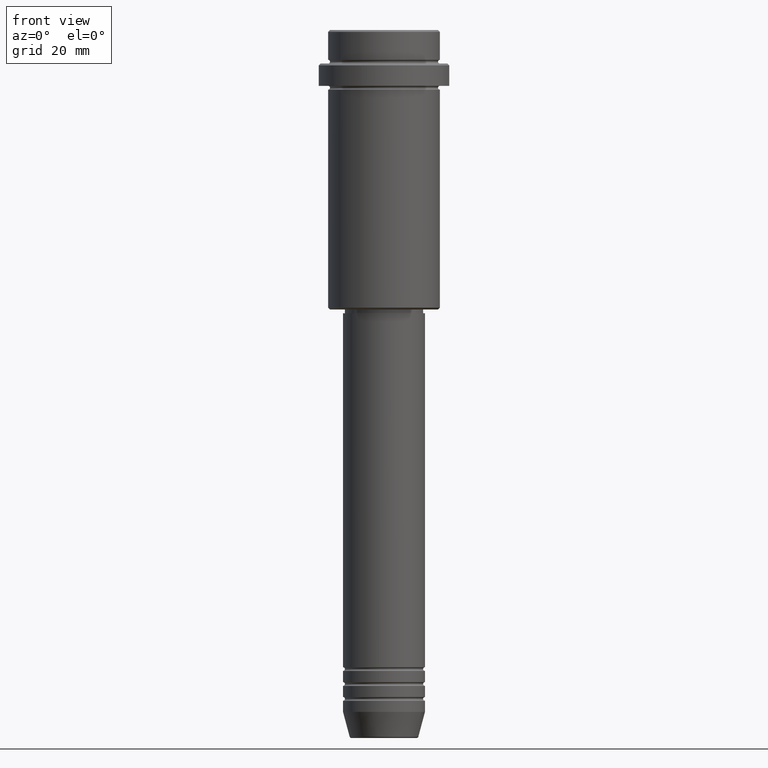
[diagram: clean part render]
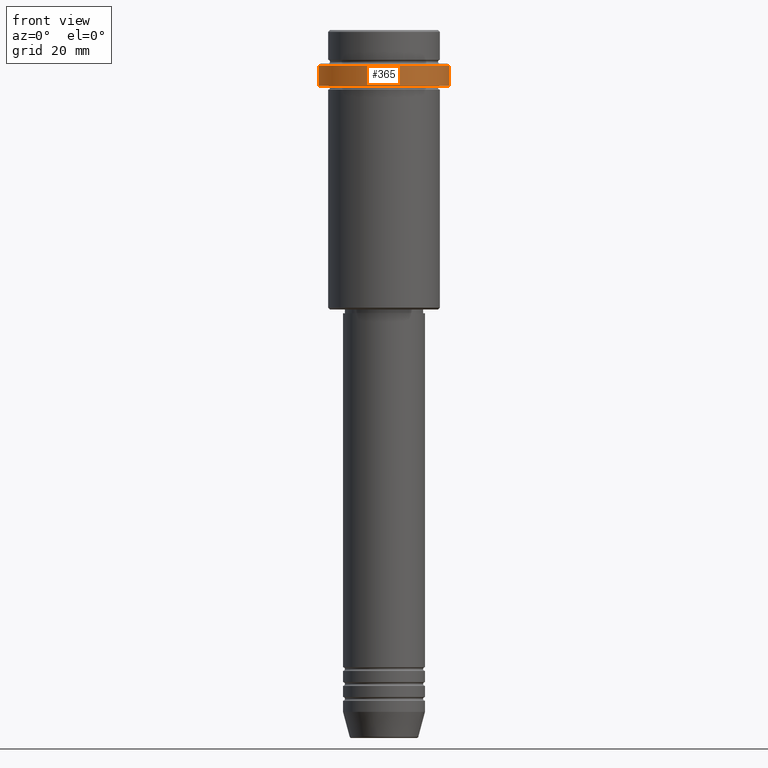
[diagram: same view with one face highlighted and labeled with its STEP entity id]
A machine part, front view. The second image highlights one B-rep face of the part: STEP entity #365.
In plain terms, the highlighted cylindrical surface (partial cylindrical patch) has radius 17.5 mm, axis along (-0, -0, 1).
Its self-contained STEP definition (entity closure, byte-faithful):
#9 = VERTEX_POINT ( 'NONE', #802 ) ;
#16 = FACE_OUTER_BOUND ( 'NONE', #464, .T. ) ;
#57 = VERTEX_POINT ( 'NONE', #792 ) ;
#143 = LINE ( 'NONE', #171, #449 ) ;
#166 = CARTESIAN_POINT ( 'NONE',  ( 0.000000000000000000, 0.000000000000000000, 0.000000000000000000 ) ) ;
#171 = CARTESIAN_POINT ( 'NONE',  ( 17.50000000000000000, 0.000000000000000000, 0.000000000000000000 ) ) ;
#184 = AXIS2_PLACEMENT_3D ( 'NONE', #844, #300, #313 ) ;
#221 = LINE ( 'NONE', #596, #586 ) ;
#266 = DIRECTION ( 'NONE',  ( -0.000000000000000000, -0.000000000000000000, 1.000000000000000000 ) ) ;
#298 = ORIENTED_EDGE ( 'NONE', *, *, #1265, .F. ) ;
#300 = DIRECTION ( 'NONE',  ( -0.000000000000000000, -0.000000000000000000, 1.000000000000000000 ) ) ;
#313 = DIRECTION ( 'NONE',  ( 1.000000000000000000, 0.000000000000000000, 0.000000000000000000 ) ) ;
#340 = DIRECTION ( 'NONE',  ( 0.000000000000000000, 0.000000000000000000, -1.000000000000000000 ) ) ;
#365 = ADVANCED_FACE ( 'NONE', ( #16 ), #379, .T. ) ;
#379 = CYLINDRICAL_SURFACE ( 'NONE', #707, 17.50000000000000000 ) ;
#449 = VECTOR ( 'NONE', #716, 1000.000000000000000 ) ;
#464 = EDGE_LOOP ( 'NONE', ( #298, #1007, #563, #519 ) ) ;
#519 = ORIENTED_EDGE ( 'NONE', *, *, #751, .T. ) ;
#537 = CARTESIAN_POINT ( 'NONE',  ( 17.50000000000000000, 0.000000000000000000, -9.500000000000001776 ) ) ;
#563 = ORIENTED_EDGE ( 'NONE', *, *, #1349, .T. ) ;
#585 = CARTESIAN_POINT ( 'NONE',  ( 0.000000000000000000, 0.000000000000000000, -9.500000000000001776 ) ) ;
#586 = VECTOR ( 'NONE', #602, 1000.000000000000000 ) ;
#591 = VERTEX_POINT ( 'NONE', #537 ) ;
#596 = CARTESIAN_POINT ( 'NONE',  ( -17.50000000000000000, 2.143131898507868248E-15, 0.000000000000000000 ) ) ;
#602 = DIRECTION ( 'NONE',  ( -0.000000000000000000, -0.000000000000000000, 1.000000000000000000 ) ) ;
#707 = AXIS2_PLACEMENT_3D ( 'NONE', #166, #266, #1139 ) ;
#716 = DIRECTION ( 'NONE',  ( -0.000000000000000000, -0.000000000000000000, 1.000000000000000000 ) ) ;
#742 = CIRCLE ( 'NONE', #184, 17.50000000000000000 ) ;
#751 = EDGE_CURVE ( 'NONE', #591, #9, #790, .T. ) ;
#790 = CIRCLE ( 'NONE', #1157, 17.50000000000000000 ) ;
#792 = CARTESIAN_POINT ( 'NONE',  ( 17.50000000000000000, 0.000000000000000000, -15.00000000000000178 ) ) ;
#802 = CARTESIAN_POINT ( 'NONE',  ( -17.50000000000000000, 2.143131898507868248E-15, -9.500000000000001776 ) ) ;
#807 = VERTEX_POINT ( 'NONE', #1092 ) ;
#844 = CARTESIAN_POINT ( 'NONE',  ( 0.000000000000000000, 0.000000000000000000, -15.00000000000000178 ) ) ;
#1007 = ORIENTED_EDGE ( 'NONE', *, *, #1084, .T. ) ;
#1009 = DIRECTION ( 'NONE',  ( 1.000000000000000000, 0.000000000000000000, 0.000000000000000000 ) ) ;
#1084 = EDGE_CURVE ( 'NONE', #807, #57, #742, .T. ) ;
#1092 = CARTESIAN_POINT ( 'NONE',  ( -17.50000000000000000, 2.143131898507868248E-15, -15.00000000000000178 ) ) ;
#1139 = DIRECTION ( 'NONE',  ( 1.000000000000000000, 0.000000000000000000, 0.000000000000000000 ) ) ;
#1157 = AXIS2_PLACEMENT_3D ( 'NONE', #585, #340, #1009 ) ;
#1265 = EDGE_CURVE ( 'NONE', #807, #9, #221, .T. ) ;
#1349 = EDGE_CURVE ( 'NONE', #57, #591, #143, .T. ) ;